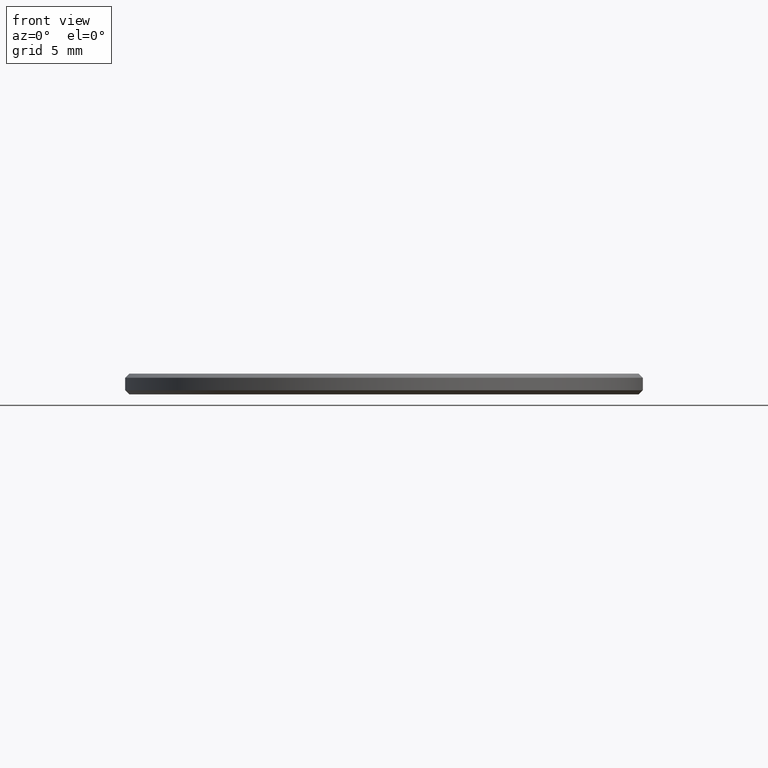
[diagram: clean part render]
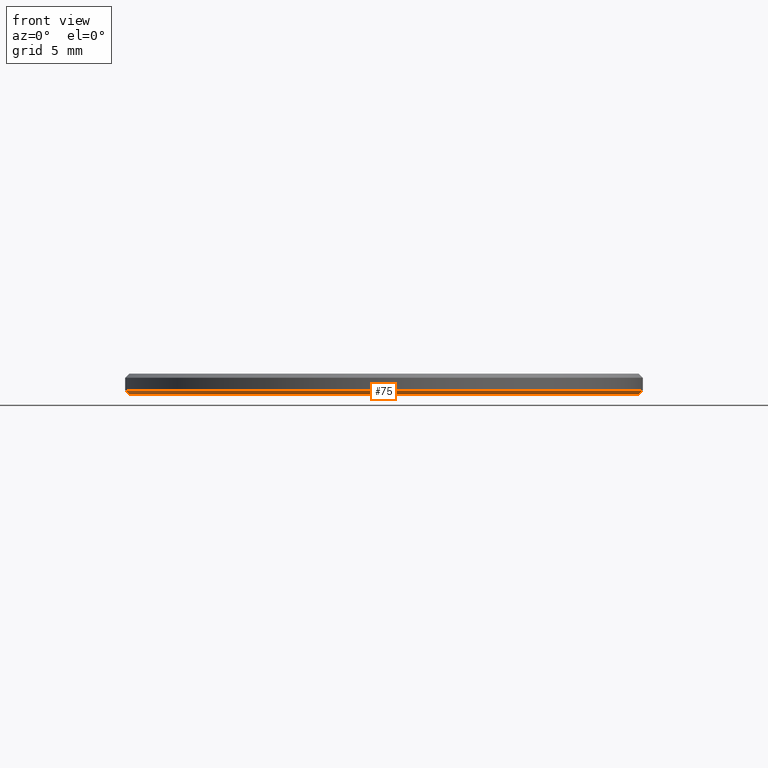
[diagram: same view with one face highlighted and labeled with its STEP entity id]
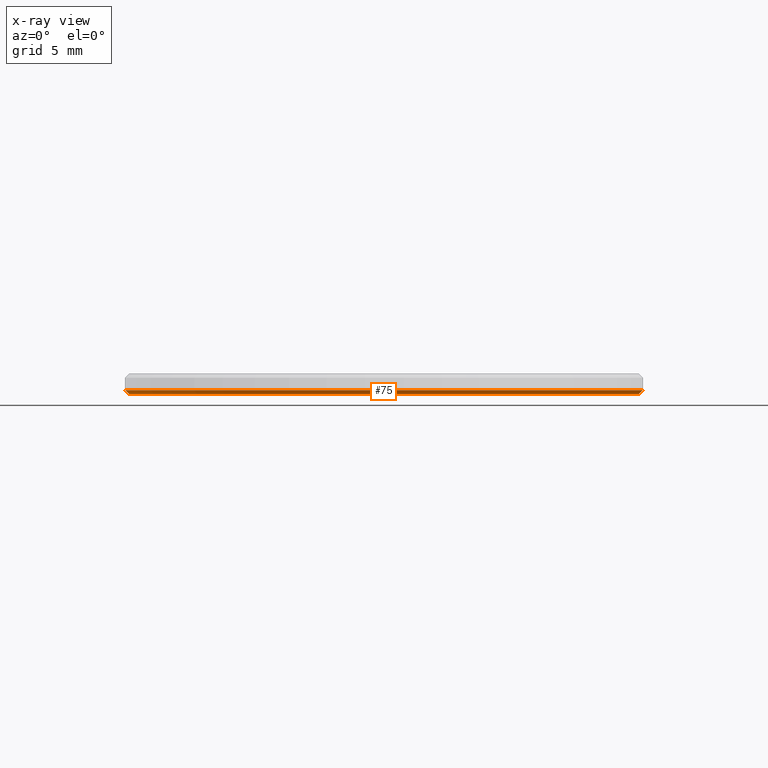
[diagram: x-ray of the same camera — body ghosted, the highlighted face saturated]
A machine part, front view. The second image highlights one B-rep face of the part: STEP entity #75.
The next image is the same camera in x-ray: the body ghosted, the highlighted face saturated — about 0% of this face is hidden behind the body in this view.
In plain terms, the highlighted conical surface has half-angle 45 deg.
Its self-contained STEP definition (entity closure, byte-faithful):
#2 = EDGE_CURVE ( 'NONE', #176, #126, #35, .T. ) ;
#5 = CARTESIAN_POINT ( 'NONE',  ( 12.50000000000000000, 0.000000000000000000, 0.1999999999999987899 ) ) ;
#7 = CARTESIAN_POINT ( 'NONE',  ( -12.50000000000000000, 0.000000000000000000, 0.1999999999999987899 ) ) ;
#13 = CARTESIAN_POINT ( 'NONE',  ( 12.50000000000000000, 1.530808498934191521E-15, 0.1999999999999987899 ) ) ;
#16 = CARTESIAN_POINT ( 'NONE',  ( 0.000000000000000000, 0.000000000000000000, 0.1999999999999987899 ) ) ;
#29 = EDGE_LOOP ( 'NONE', ( #230, #216, #42, #38 ) ) ;
#32 = DIRECTION ( 'NONE',  ( -0.7071067811865474617, 8.659560562354932858E-17, 0.7071067811865474617 ) ) ;
#35 = LINE ( 'NONE', #53, #101 ) ;
#37 = AXIS2_PLACEMENT_3D ( 'NONE', #164, #147, #132 ) ;
#38 = ORIENTED_EDGE ( 'NONE', *, *, #82, .F. ) ;
#42 = ORIENTED_EDGE ( 'NONE', *, *, #204, .T. ) ;
#53 = CARTESIAN_POINT ( 'NONE',  ( -12.50000000000000000, 1.530808498934191521E-15, 0.1999999999999987899 ) ) ;
#55 = EDGE_CURVE ( 'NONE', #108, #176, #183, .T. ) ;
#58 = CARTESIAN_POINT ( 'NONE',  ( -12.30000000000000249, 1.518562030942718164E-15, 0.000000000000000000 ) ) ;
#68 = VERTEX_POINT ( 'NONE', #13 ) ;
#71 = CIRCLE ( 'NONE', #37, 12.50000000000000000 ) ;
#75 = ADVANCED_FACE ( 'NONE', ( #199 ), #90, .T. ) ;
#77 = DIRECTION ( 'NONE',  ( 0.7071067811865474617, 0.000000000000000000, 0.7071067811865474617 ) ) ;
#82 = EDGE_CURVE ( 'NONE', #126, #68, #71, .T. ) ;
#88 = VECTOR ( 'NONE', #77, 1000.000000000000114 ) ;
#90 = CONICAL_SURFACE ( 'NONE', #171, 12.50000000000000000, 0.7853981633974482790 ) ;
#92 = DIRECTION ( 'NONE',  ( -0.000000000000000000, -0.000000000000000000, 1.000000000000000000 ) ) ;
#101 = VECTOR ( 'NONE', #32, 1000.000000000000114 ) ;
#106 = LINE ( 'NONE', #5, #88 ) ;
#108 = VERTEX_POINT ( 'NONE', #152 ) ;
#110 = AXIS2_PLACEMENT_3D ( 'NONE', #149, #202, #128 ) ;
#126 = VERTEX_POINT ( 'NONE', #7 ) ;
#128 = DIRECTION ( 'NONE',  ( 1.000000000000000000, 0.000000000000000000, 0.000000000000000000 ) ) ;
#132 = DIRECTION ( 'NONE',  ( 1.000000000000000000, 0.000000000000000000, 0.000000000000000000 ) ) ;
#147 = DIRECTION ( 'NONE',  ( -0.000000000000000000, -0.000000000000000000, 1.000000000000000000 ) ) ;
#149 = CARTESIAN_POINT ( 'NONE',  ( 0.000000000000000000, 0.000000000000000000, 0.000000000000000000 ) ) ;
#152 = CARTESIAN_POINT ( 'NONE',  ( 12.30000000000000249, 0.000000000000000000, 0.000000000000000000 ) ) ;
#164 = CARTESIAN_POINT ( 'NONE',  ( 0.000000000000000000, 0.000000000000000000, 0.1999999999999987899 ) ) ;
#171 = AXIS2_PLACEMENT_3D ( 'NONE', #16, #92, #203 ) ;
#176 = VERTEX_POINT ( 'NONE', #58 ) ;
#183 = CIRCLE ( 'NONE', #110, 12.30000000000000249 ) ;
#199 = FACE_OUTER_BOUND ( 'NONE', #29, .T. ) ;
#202 = DIRECTION ( 'NONE',  ( -0.000000000000000000, -0.000000000000000000, -1.000000000000000000 ) ) ;
#203 = DIRECTION ( 'NONE',  ( 1.000000000000000000, 0.000000000000000000, 0.000000000000000000 ) ) ;
#204 = EDGE_CURVE ( 'NONE', #108, #68, #106, .T. ) ;
#216 = ORIENTED_EDGE ( 'NONE', *, *, #55, .F. ) ;
#230 = ORIENTED_EDGE ( 'NONE', *, *, #2, .F. ) ;